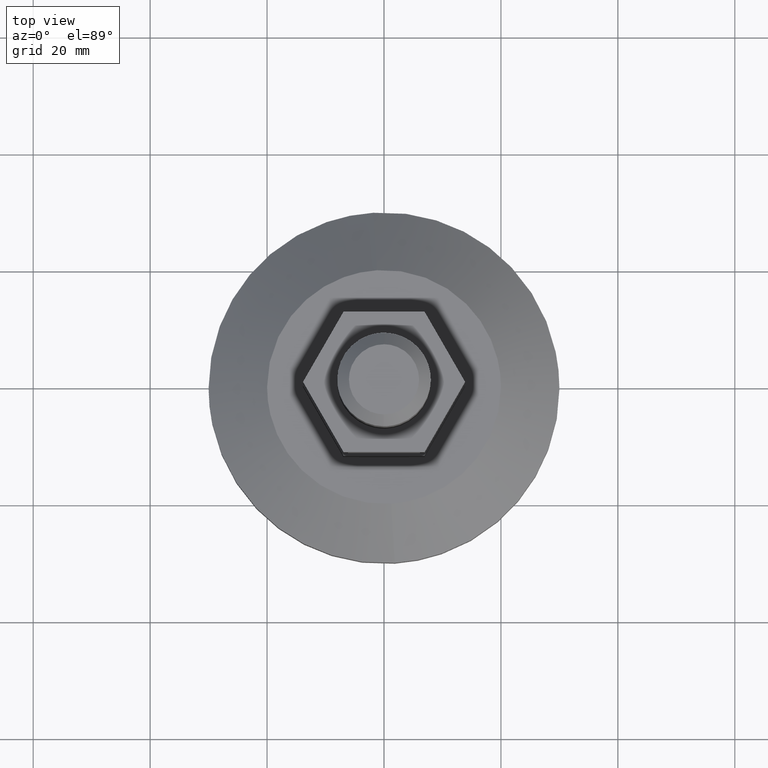
[diagram: clean part render]
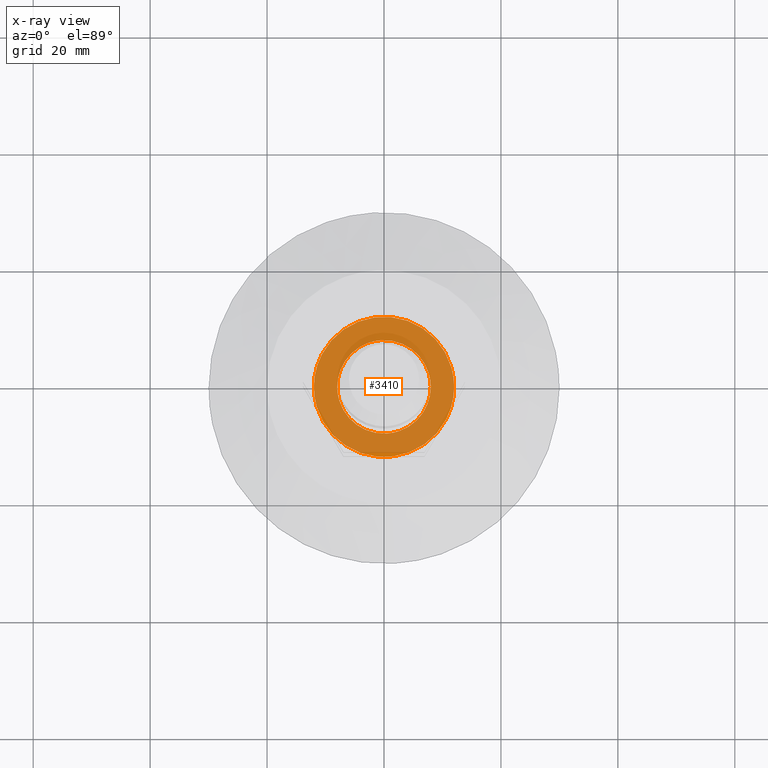
[diagram: x-ray — body ghosted, one internal face saturated and labeled with its STEP entity id]
A machine part, top view, then the same camera in x-ray: the body is ghosted and one INTERNAL B-rep face — a face not visible from any outside direction — is saturated and labeled: STEP entity #3410.
In plain terms, the highlighted face is a freeform B-spline surface patch.
Its self-contained STEP definition (entity closure, byte-faithful):
#3149=CARTESIAN_POINT('',(-11.993593654587141,0.0,17.0));
#3150=VERTEX_POINT('',#3149);
#3151=CARTESIAN_POINT('',(-10.636228768112399,5.542285299756895,17.000000000004100));
#3152=VERTEX_POINT('',#3151);
#3153=CARTESIAN_POINT('',(-11.993593654587141,0.0,17.0));
#3154=CARTESIAN_POINT('',(-11.993593654590283,2.937359231613565,17.000000000002053));
#3155=CARTESIAN_POINT('',(-10.636228768112396,5.542285299756895,17.000000000004107));
#3163=(BOUNDED_CURVE()B_SPLINE_CURVE(2,(#3153,#3154,#3155),.UNSPECIFIED.,.F.,.U.)B_SPLINE_CURVE_WITH_KNOTS((3,3),(0.500000000000000,0.578613981801219),.UNSPECIFIED.)CURVE()GEOMETRIC_REPRESENTATION_ITEM()RATIONAL_B_SPLINE_CURVE((1.0,0.907897991305995,0.873720027694600))REPRESENTATION_ITEM(''));
#3164=EDGE_CURVE('',#3150,#3152,#3163,.T.);
#3166=CARTESIAN_POINT('',(10.636228768112399,-5.542285299756895,17.000000000004100));
#3167=VERTEX_POINT('',#3166);
#3168=CARTESIAN_POINT('',(10.636228768112399,-5.542285299756895,17.000000000004100));
#3169=CARTESIAN_POINT('',(10.156371554367150,-6.463866078152769,17.000000000004039));
#3170=CARTESIAN_POINT('',(9.195150537989058,-7.837314859812783,17.000000000003968));
#3171=CARTESIAN_POINT('',(7.460711994779170,-9.461431384095869,17.000000000003691));
#3172=CARTESIAN_POINT('',(5.896717188205851,-10.500120181352891,17.000000000003610));
#3173=CARTESIAN_POINT('',(4.155276469570899,-11.299453762357620,17.000000000003169));
#3174=CARTESIAN_POINT('',(2.632080807659921,-11.736763980759511,17.000000000003130));
#3175=CARTESIAN_POINT('',(1.027628408135152,-11.978642282673290,17.000000000002629));
#3176=CARTESIAN_POINT('',(-0.513424394606689,-12.025059636574120,17.000000000002458));
#3177=CARTESIAN_POINT('',(-2.251874994983772,-11.823480773873881,17.000000000002188));
#3178=CARTESIAN_POINT('',(-4.023265844833506,-11.350413575875400,17.000000000001819));
#3179=CARTESIAN_POINT('',(-5.815472221654472,-10.556762928179120,17.000000000001499));
#3180=CARTESIAN_POINT('',(-7.620151546364467,-9.352555909225329,17.000000000001130));
#3181=CARTESIAN_POINT('',(-9.111154226808429,-7.890648774352868,17.000000000000838));
#3182=CARTESIAN_POINT('',(-10.230622766120771,-6.334694329332389,17.000000000000568));
#3183=CARTESIAN_POINT('',(-11.082496933866400,-4.711886265643252,17.000000000000330));
#3184=CARTESIAN_POINT('',(-11.793803366168939,-2.618151714544306,17.000000000000199));
#3185=CARTESIAN_POINT('',(-11.993795890920079,-0.955865762615646,16.999999999999940));
#3186=CARTESIAN_POINT('',(-11.993593654587141,0.0,17.0));
#3187=B_SPLINE_CURVE_WITH_KNOTS('',3,(#3168,#3169,#3170,#3171,#3172,#3173,#3174,#3175,#3176,#3177,#3178,#3179,#3180,#3181,#3182,#3183,#3184,#3185,#3186),.UNSPECIFIED.,.F.,.U.,(4,1,1,1,1,1,1,1,1,1,1,1,1,1,1,1,4),(0.000000076220896,3.116974844014976,4.987167610526324,7.106729760639599,8.727553230190946,10.722440935636749,11.844554383514289,13.589981801530250,15.335488548558390,17.080992721183470,19.075881301712052,21.195414796146729,23.564326103810291,25.309840273618459,26.930664694488989,29.050246455193459,31.917814500881551),.UNSPECIFIED.);
#3188=EDGE_CURVE('',#3167,#3150,#3187,.T.);
#3225=CARTESIAN_POINT('',(11.993593654587141,0.0,17.0));
#3226=VERTEX_POINT('',#3225);
#3227=CARTESIAN_POINT('',(-10.636228768112399,5.542285299756895,17.000000000004100));
#3228=CARTESIAN_POINT('',(-10.233070076816039,6.316354268555609,17.000000000004100));
#3229=CARTESIAN_POINT('',(-9.558814435258912,7.323959581784812,17.000000000003929));
#3230=CARTESIAN_POINT('',(-8.212192345971571,8.798082406119470,17.000000000003769));
#3231=CARTESIAN_POINT('',(-6.859637745168319,9.914845266521676,17.000000000003880));
#3232=CARTESIAN_POINT('',(-5.080398387233529,10.918181450182979,17.000000000003151));
#3233=CARTESIAN_POINT('',(-3.401243694347547,11.545496501024591,17.000000000003201));
#3234=CARTESIAN_POINT('',(-1.446619127549933,11.966329505461641,17.000000000002782));
#3235=CARTESIAN_POINT('',(0.432084617873403,12.042423622351340,17.000000000002501));
#3236=CARTESIAN_POINT('',(2.456340126637313,11.786323759889109,17.000000000002132));
#3237=CARTESIAN_POINT('',(4.142069678929363,11.307832544810941,17.000000000001830));
#3238=CARTESIAN_POINT('',(5.768267536836686,10.557043890387201,17.000000000001510));
#3239=CARTESIAN_POINT('',(7.419120231081227,9.504598911210080,17.000000000001169));
#3240=CARTESIAN_POINT('',(8.956587021230536,8.088343358488814,17.000000000000892));
#3241=CARTESIAN_POINT('',(10.241350561860870,6.341281884468228,17.000000000000501));
#3242=CARTESIAN_POINT('',(11.114886251394971,4.634243083949459,17.000000000000451));
#3243=CARTESIAN_POINT('',(11.803740699558990,2.535011139856562,16.999999999999840));
#3244=CARTESIAN_POINT('',(11.993830313878430,0.955876680603555,17.000000000000519));
#3245=CARTESIAN_POINT('',(11.993593654587141,0.0,17.0));
#3246=B_SPLINE_CURVE_WITH_KNOTS('',3,(#3227,#3228,#3229,#3230,#3231,#3232,#3233,#3234,#3235,#3236,#3237,#3238,#3239,#3240,#3241,#3242,#3243,#3244,#3245),.UNSPECIFIED.,.F.,.U.,(4,1,1,1,1,1,1,1,1,1,1,1,1,1,1,1,4),(0.000000076219752,2.618251600208890,3.615690654084979,5.984600998123838,7.854792813607819,9.725004452742081,11.345838689626049,13.839321115153121,15.335488548556979,17.455049839185492,19.075881301710929,20.696706681075071,23.314971762232950,25.309840273618310,27.180023974003650,29.050246455193459,31.917814500881551),.UNSPECIFIED.);
#3247=EDGE_CURVE('',#3152,#3226,#3246,.T.);
#3255=CARTESIAN_POINT('',(11.993593654587141,0.0,17.0));
#3256=CARTESIAN_POINT('',(11.993593654590283,-2.937359231613565,17.000000000002053));
#3257=CARTESIAN_POINT('',(10.636228768112396,-5.542285299756895,17.000000000004107));
#3265=(BOUNDED_CURVE()B_SPLINE_CURVE(2,(#3255,#3256,#3257),.UNSPECIFIED.,.F.,.U.)B_SPLINE_CURVE_WITH_KNOTS((3,3),(0.0,0.078613981801220),.UNSPECIFIED.)CURVE()GEOMETRIC_REPRESENTATION_ITEM()RATIONAL_B_SPLINE_CURVE((1.0,0.907897991305995,0.873720027694600))REPRESENTATION_ITEM(''));
#3266=EDGE_CURVE('',#3226,#3167,#3265,.T.);
#3290=CARTESIAN_POINT('',(0.488379378605347,-7.985078934016423,16.999999999999940));
#3291=VERTEX_POINT('',#3290);
#3297=CARTESIAN_POINT('',(-8.0,0.0,17.0));
#3298=VERTEX_POINT('',#3297);
#3299=CARTESIAN_POINT('',(0.488379378605347,-7.985078934016424,16.999999999999943));
#3300=CARTESIAN_POINT('',(0.244417652130384,-7.999999999995128,16.999999999999996));
#3301=CARTESIAN_POINT('',(-2.935667E-013,-7.999999999995203,17.0));
#3302=CARTESIAN_POINT('',(-8.000000000000142,-7.999999999997675,17.000000000000004));
#3303=CARTESIAN_POINT('',(-8.0,0.0,17.0));
#3311=(BOUNDED_CURVE()B_SPLINE_CURVE(2,(#3299,#3300,#3301,#3302,#3303),.UNSPECIFIED.,.F.,.U.)B_SPLINE_CURVE_WITH_KNOTS((3,2,3),(0.239333154204801,0.250000000000000,0.500000000000000),.UNSPECIFIED.)CURVE()GEOMETRIC_REPRESENTATION_ITEM()RATIONAL_B_SPLINE_CURVE((0.976072453086440,0.987503012801830,1.0,0.707106781186548,1.0))REPRESENTATION_ITEM(''));
#3312=EDGE_CURVE('',#3291,#3298,#3311,.T.);
#3314=CARTESIAN_POINT('',(-0.488379378605346,7.985078934016423,16.999999999999940));
#3315=VERTEX_POINT('',#3314);
#3316=CARTESIAN_POINT('',(-8.0,0.0,17.0));
#3317=CARTESIAN_POINT('',(-7.999999999999849,7.525656923372800,17.000000000000007));
#3318=CARTESIAN_POINT('',(-0.488379432670810,7.985078930709758,17.0));
#3326=(BOUNDED_CURVE()B_SPLINE_CURVE(2,(#3316,#3317,#3318),.UNSPECIFIED.,.F.,.U.)B_SPLINE_CURVE_WITH_KNOTS((3,3),(0.500000000000000,0.739333154204801),.UNSPECIFIED.)CURVE()GEOMETRIC_REPRESENTATION_ITEM()RATIONAL_B_SPLINE_CURVE((1.0,0.719603768384717,0.976072453086440))REPRESENTATION_ITEM(''));
#3327=EDGE_CURVE('',#3298,#3315,#3326,.T.);
#3359=CARTESIAN_POINT('',(8.0,0.0,17.0));
#3360=VERTEX_POINT('',#3359);
#3361=CARTESIAN_POINT('',(-0.488379378605346,7.985078934016423,16.999999999999940));
#3362=CARTESIAN_POINT('',(-0.244417652130383,7.999999999995128,17.000000000000007));
#3363=CARTESIAN_POINT('',(2.927048E-013,7.999999999995204,17.0));
#3364=CARTESIAN_POINT('',(8.000000000000142,7.999999999997675,17.000000000000004));
#3365=CARTESIAN_POINT('',(8.0,0.0,17.0));
#3373=(BOUNDED_CURVE()B_SPLINE_CURVE(2,(#3361,#3362,#3363,#3364,#3365),.UNSPECIFIED.,.F.,.U.)B_SPLINE_CURVE_WITH_KNOTS((3,2,3),(0.739333154204801,0.750000000000000,1.0),.UNSPECIFIED.)CURVE()GEOMETRIC_REPRESENTATION_ITEM()RATIONAL_B_SPLINE_CURVE((0.976072453086440,0.987503012801830,1.0,0.707106781186548,1.0))REPRESENTATION_ITEM(''));
#3374=EDGE_CURVE('',#3315,#3360,#3373,.T.);
#3376=CARTESIAN_POINT('',(8.0,0.0,17.0));
#3377=CARTESIAN_POINT('',(7.999999999999848,-7.525656923372797,17.000000000000004));
#3378=CARTESIAN_POINT('',(0.488379432670812,-7.985078930709758,16.999999999999993));
#3386=(BOUNDED_CURVE()B_SPLINE_CURVE(2,(#3376,#3377,#3378),.UNSPECIFIED.,.F.,.U.)B_SPLINE_CURVE_WITH_KNOTS((3,3),(0.0,0.239333154204801),.UNSPECIFIED.)CURVE()GEOMETRIC_REPRESENTATION_ITEM()RATIONAL_B_SPLINE_CURVE((1.0,0.719603768384718,0.976072453086440))REPRESENTATION_ITEM(''));
#3387=EDGE_CURVE('',#3360,#3291,#3386,.T.);
#3393=CARTESIAN_POINT('',(-13.191753614188571,-13.187317277846830,17.0));
#3394=CARTESIAN_POINT('',(13.191754257575070,-13.187317277846830,17.0));
#3395=CARTESIAN_POINT('',(-13.191753614188571,13.187317706771170,17.0));
#3396=CARTESIAN_POINT('',(13.191754257575070,13.187317706771170,17.0));
#3397=B_SPLINE_SURFACE_WITH_KNOTS('',1,1,((#3393,#3395),(#3394,#3396)),.UNSPECIFIED.,.F.,.F.,.U.,(2,2),(2,2),(0.0,26.383507871763651),(0.0,26.374634984618002),.UNSPECIFIED.);
#3398=ORIENTED_EDGE('',*,*,#3266,.T.);
#3399=ORIENTED_EDGE('',*,*,#3188,.T.);
#3400=ORIENTED_EDGE('',*,*,#3164,.T.);
#3401=ORIENTED_EDGE('',*,*,#3247,.T.);
#3402=EDGE_LOOP('',(#3398,#3399,#3400,#3401));
#3403=FACE_OUTER_BOUND('',#3402,.T.);
#3404=ORIENTED_EDGE('',*,*,#3327,.F.);
#3405=ORIENTED_EDGE('',*,*,#3312,.F.);
#3406=ORIENTED_EDGE('',*,*,#3387,.F.);
#3407=ORIENTED_EDGE('',*,*,#3374,.F.);
#3408=EDGE_LOOP('',(#3404,#3405,#3406,#3407));
#3409=FACE_BOUND('',#3408,.T.);
#3410=ADVANCED_FACE('',(#3403,#3409),#3397,.F.);